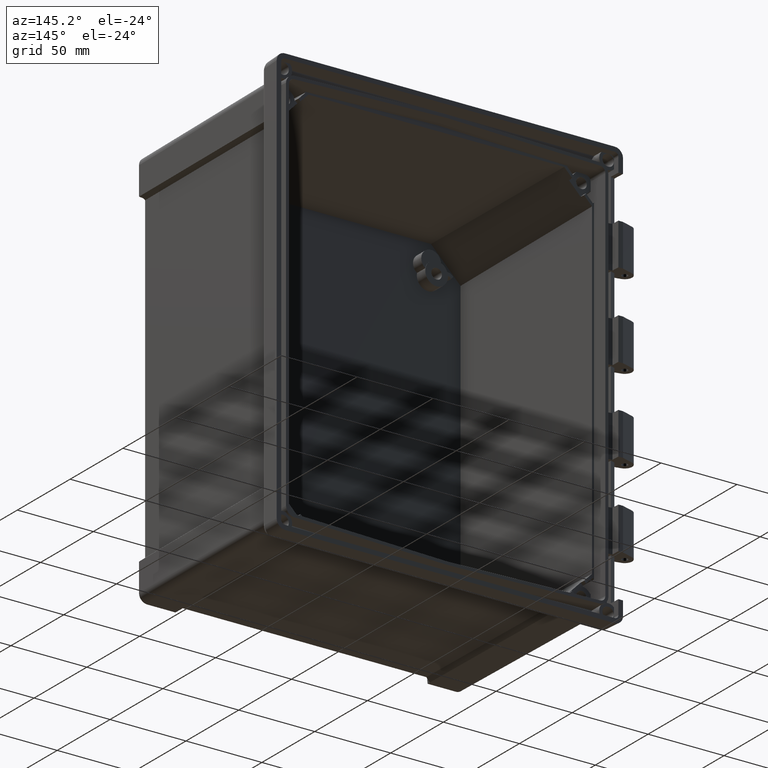
[diagram: clean part render]
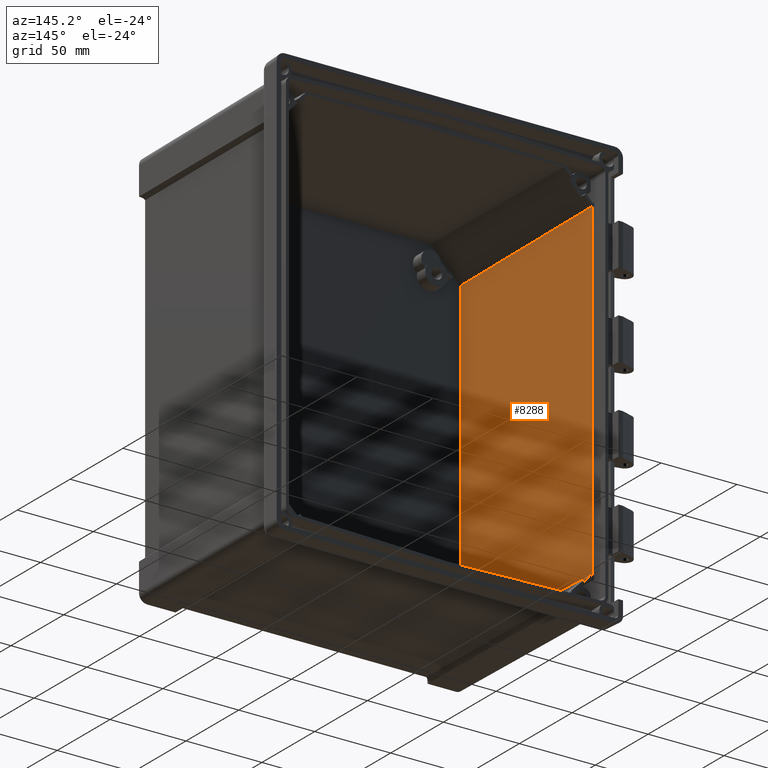
[diagram: same view with one face highlighted and labeled with its STEP entity id]
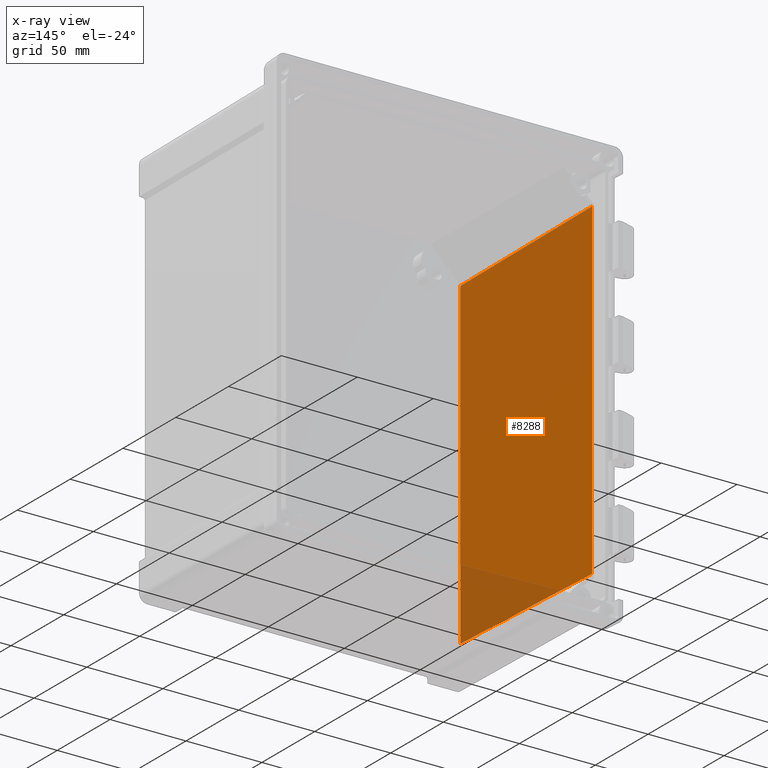
[diagram: x-ray of the same camera — body ghosted, the highlighted face saturated]
A machine part, auxiliary view. The second image highlights one B-rep face of the part: STEP entity #8288.
The next image is the same camera in x-ray: the body ghosted, the highlighted face saturated — about 8% of this face is hidden behind the body in this view.
In plain terms, the highlighted planar face has unit normal (0.9999, 0.014, 0).
Its self-contained STEP definition (entity closure, byte-faithful):
#367=DIRECTION('',(0.E0,0.E0,1.E0));
#368=VECTOR('',#367,2.118247448319E2);
#369=CARTESIAN_POINT('',(-1.007822178764E2,-1.349E2,-1.059123724159E2));
#370=LINE('',#369,#368);
#371=DIRECTION('',(0.E0,0.E0,-1.E0));
#372=VECTOR('',#371,2.174706989141E2);
#373=CARTESIAN_POINT('',(-1.024872652366E2,-1.279291351800E1,1.087353494571E2));
#374=LINE('',#373,#372);
#375=DIRECTION('',(1.395843279890E-2,-9.996341438642E-1,2.316766226392E-2));
#376=VECTOR('',#375,1.217516300692E2);
#377=CARTESIAN_POINT('',(-1.024872652366E2,-1.279291351800E1,
-1.087353494571E2));
#378=LINE('',#377,#376);
#395=DIRECTION('',(-1.396194753954E-2,9.998863355531E-1,-5.690342262361E-3));
#396=VECTOR('',#395,4.000454647066E-1);
#397=CARTESIAN_POINT('',(-1.007822178764E2,-1.349E2,-1.059123724159E2));
#398=LINE('',#397,#396);
#4188=DIRECTION('',(-1.395843279890E-2,9.996341438642E-1,2.316766226392E-2));
#4189=VECTOR('',#4188,1.217516300692E2);
#4190=CARTESIAN_POINT('',(-1.007878032901E2,-1.345000000062E2,
1.059146488115E2));
#4191=LINE('',#4190,#4189);
#4196=DIRECTION('',(1.396194753954E-2,-9.998863355531E-1,-5.690342262361E-3));
#4197=VECTOR('',#4196,4.000454647066E-1);
#4198=CARTESIAN_POINT('',(-1.007878032901E2,-1.345000000062E2,
1.059146488115E2));
#4199=LINE('',#4198,#4197);
#6623=CARTESIAN_POINT('',(-1.007822178764E2,-1.349E2,-1.059123724159E2));
#6624=CARTESIAN_POINT('',(-1.007822178764E2,-1.349E2,1.059123724159E2));
#6625=VERTEX_POINT('',#6623);
#6626=VERTEX_POINT('',#6624);
#7144=CARTESIAN_POINT('',(-1.024872652366E2,-1.279291351800E1,
1.087353494571E2));
#7145=CARTESIAN_POINT('',(-1.024872652366E2,-1.279291351800E1,
-1.087353494571E2));
#7146=VERTEX_POINT('',#7144);
#7147=VERTEX_POINT('',#7145);
#7162=CARTESIAN_POINT('',(-1.007878032901E2,-1.345000000062E2,
1.059146488115E2));
#7163=VERTEX_POINT('',#7162);
#7548=CARTESIAN_POINT('',(-1.007878032901E2,-1.345000000062E2,
-1.059146488115E2));
#7550=VERTEX_POINT('',#7548);
#8270=CARTESIAN_POINT('',(-1.016347415570E2,-7.384645675900E1,0.E0));
#8271=DIRECTION('',(9.999025240092E-1,1.396218034463E-2,0.E0));
#8272=DIRECTION('',(1.396218034463E-2,-9.999025240092E-1,0.E0));
#8273=AXIS2_PLACEMENT_3D('',#8270,#8271,#8272);
#8274=PLANE('',#8273);
#8276=ORIENTED_EDGE('',*,*,#8275,.T.);
#8278=ORIENTED_EDGE('',*,*,#8277,.F.);
#8280=ORIENTED_EDGE('',*,*,#8279,.T.);
#8282=ORIENTED_EDGE('',*,*,#8281,.F.);
#8284=ORIENTED_EDGE('',*,*,#8283,.T.);
#8285=ORIENTED_EDGE('',*,*,#8241,.T.);
#8286=EDGE_LOOP('',(#8276,#8278,#8280,#8282,#8284,#8285));
#8287=FACE_OUTER_BOUND('',#8286,.F.);
#8288=ADVANCED_FACE('',(#8287),#8274,.T.);
#8241=EDGE_CURVE('',#7146,#7147,#374,.T.);
#8275=EDGE_CURVE('',#7147,#7550,#378,.T.);
#8277=EDGE_CURVE('',#6625,#7550,#398,.T.);
#8279=EDGE_CURVE('',#6625,#6626,#370,.T.);
#8281=EDGE_CURVE('',#7163,#6626,#4199,.T.);
#8283=EDGE_CURVE('',#7163,#7146,#4191,.T.);